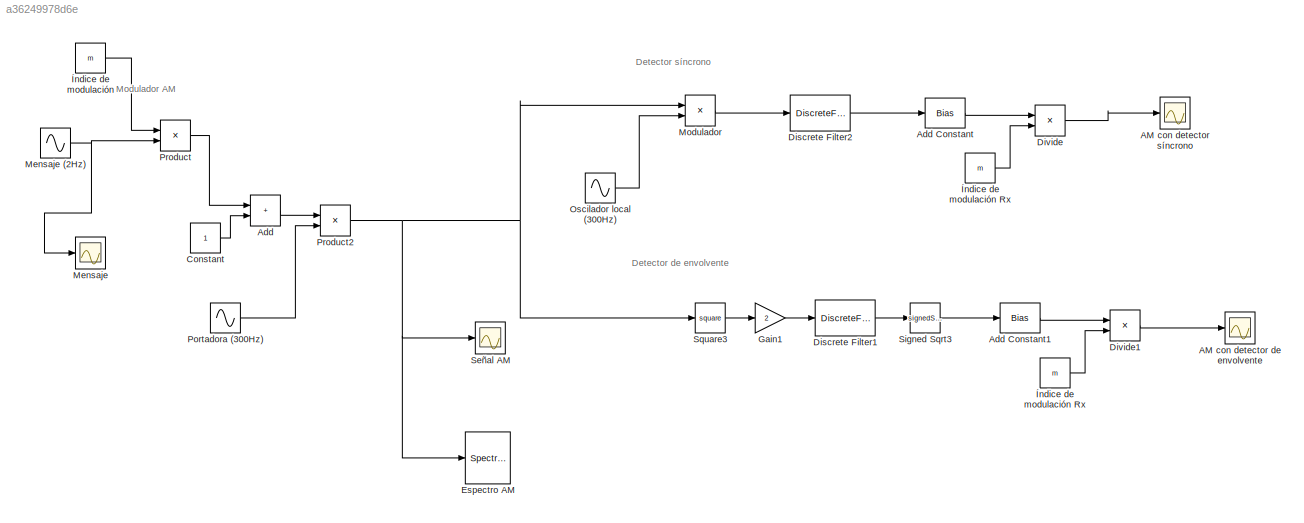
MODEL slx_a36249978d6e
KIND model
CONFIG AbsTol = auto
CONFIG EnableMultiTasking = off
CONFIG FixedStep = auto
CONFIG MaxStep = auto
CONFIG MinStep = auto
CONFIG RelTol = 1e-3
CONFIG SampleTimeConstraint = Unconstrained
CONFIG SolverName = VariableStepAuto
CONFIG StartTime = 0.0
CONFIG StopTime = 10.0
WORKSPACE source: mxarray member
WORKSPACE fm = 2
WORKSPACE fp = 300
WORKSPACE fs = 5000
WORKSPACE m = 0.8
BLOCK [Scope] AM con detector de envolvente
  Floating = off
  NumInputPorts = 1
  Ports = [1]
  ScopeSpecificationString = Simulink.scopes.TimeScopeBlockCfg('CurrentConfiguration', extmgr.ConfigurationSet(extmgr.Configuration('Core','General UI',true),extmgr.Configuration('Core','Source UI',true),extmgr.Configuration('Sources','WiredSimulink',true,'DataLoggingVariableName','ScopeData4'),extmgr.Configuration('Visuals','Time Domain',true,'SerializedDisplays',{struct('MinYLimReal','-2.71601','MaxYLimReal','2.41345','YLab...<+1413ch>
BLOCK [Scope] AM con detector síncrono
  Floating = off
  NumInputPorts = 1
  Ports = [1]
  ScopeSpecificationString = Simulink.scopes.TimeScopeBlockCfg('CurrentConfiguration', extmgr.ConfigurationSet(extmgr.Configuration('Core','General UI',true),extmgr.Configuration('Core','Source UI',true),extmgr.Configuration('Sources','WiredSimulink',true,'DataLoggingVariableName','ScopeData3'),extmgr.Configuration('Visuals','Time Domain',true,'SerializedDisplays',{struct('MinYLimReal','-1.53126','MaxYLimReal','1.2813','YLabe...<+1391ch>
BLOCK [Sum] Add
  IconShape = rectangular
  Ports = [2, 1]
BLOCK [Bias] Add Constant
  Bias = -1
  SaturateOnIntegerOverflow = off
BLOCK [Bias] Add Constant1
  Bias = -1
  SaturateOnIntegerOverflow = off
BLOCK [Constant] Constant
BLOCK [DiscreteFilter] Discrete Filter1
  Denominator = [1	-3.83582554064735	5.52081913662223	-3.53353521946302	0.848555999266477]
  InputPortMap = u0
  InputProcessing = Columns as channels (frame based)
  Numerator = [8.98486146397045e-07	3.59394458558818e-06	5.39091687838227e-06	3.59394458558818e-06	8.98486146397045e-07]
  Ports = [1, 1]
BLOCK [DiscreteFilter] Discrete Filter2
  Denominator = [1	-3.83582554064735	5.52081913662223	-3.53353521946302	0.848555999266477]
  InputPortMap = u0
  InputProcessing = Columns as channels (frame based)
  Numerator = [8.98486146397045e-07	3.59394458558818e-06	5.39091687838227e-06	3.59394458558818e-06	8.98486146397045e-07]
  Ports = [1, 1]
BLOCK [Product] Divide
  Inputs = */
  Ports = [2, 1]
BLOCK [Product] Divide1
  Inputs = */
  Ports = [2, 1]
BLOCK [SpectrumAnalyzer] Espectro AM
  Ports = [1]
  ScopeSpecificationString = spbscopes.SpectrumAnalyzerBlockCfg('CurrentConfiguration', extmgr.ConfigurationSet(extmgr.Configuration('Core','General UI',true),extmgr.Configuration('Core','Source UI',true),extmgr.Configuration('Sources','WiredSimulink',true),extmgr.Configuration('Sources','SPTool',false),extmgr.Configuration('Sources','File',false),extmgr.Configuration('Sources','Workspace',false),extmgr.Configuration('Sources...<+3607ch>
BLOCK [Gain] Gain1
  Gain = 2
BLOCK [Scope] Mensaje
  Floating = off
  NumInputPorts = 1
  Ports = [1]
  ScopeSpecificationString = Simulink.scopes.TimeScopeBlockCfg('CurrentConfiguration', extmgr.ConfigurationSet(extmgr.Configuration('Core','General UI',true),extmgr.Configuration('Core','Source UI',true),extmgr.Configuration('Sources','WiredSimulink',true,'DataLoggingVariableName','ScopeData4'),extmgr.Configuration('Visuals','Time Domain',true,'SerializedDisplays',{struct('MinYLimReal','-1.25','MaxYLimReal','1.25','YLabelReal...<+1385ch>
BLOCK [Sin] Mensaje (2Hz) 
  Frequency = 2*pi*fm
  Ports = [0, 1]
  SampleTime = 1/fs
BLOCK [Product] Modulador
  OutDataTypeStr = Inherit: Same as first input
  Ports = [2, 1]
BLOCK [Sin] Oscilador local (300Hz)
  Amplitude = 2
  Frequency = 2*pi*fp
  Ports = [0, 1]
  SampleTime = 1/fs
BLOCK [Sin] Portadora (300Hz) 
  Frequency = 2*pi*fp
  Ports = [0, 1]
  SampleTime = 1/fs
BLOCK [Product] Product
  Ports = [2, 1]
BLOCK [Product] Product2
  OutDataTypeStr = Inherit: Same as first input
  Ports = [2, 1]
BLOCK [Scope] Señal AM
  Floating = off
  NumInputPorts = 1
  Ports = [1]
  ScopeSpecificationString = Simulink.scopes.TimeScopeBlockCfg('CurrentConfiguration', extmgr.ConfigurationSet(extmgr.Configuration('Core','General UI',true),extmgr.Configuration('Core','Source UI',true),extmgr.Configuration('Sources','WiredSimulink',true,'DataLoggingVariableName','ScopeData3'),extmgr.Configuration('Visuals','Time Domain',true),extmgr.Configuration('Tools','Plot Navigation',true),extmgr.Configuration('Tools',...<+40ch>
BLOCK [Sqrt] Signed Sqrt3
  Operator = signedSqrt
BLOCK [Math] Square3
  Operator = square
  Ports = [1, 1]
BLOCK [Constant] Índice de modulación
  Value = m
BLOCK [Constant] Índice de modulación Rx
  Value = m
BLOCK [Constant] Índice de modulación Rx 
  Value = m
ANNOTATION (root): Detector de envolvente
ANNOTATION (root): Detector síncrono
ANNOTATION (root): Modulador AM
LINE Add Constant1:1 -> Divide1:1
LINE Add Constant:1 -> Divide:1
LINE Add:1 -> Product2:1
LINE Constant:1 -> Add:2
LINE Discrete Filter1:1 -> Signed Sqrt3:1
LINE Discrete Filter2:1 -> Add Constant:1
LINE Divide1:1 -> AM con detector de envolvente:1
LINE Divide:1 -> AM con detector síncrono:1
LINE Gain1:1 -> Discrete Filter1:1
NET Mensaje (2Hz) :1 -> Mensaje:1, Product:2
LINE Modulador:1 -> Discrete Filter2:1
LINE Oscilador local (300Hz):1 -> Modulador:2
LINE Portadora (300Hz) :1 -> Product2:2
NET Product2:1 -> Espectro AM:1, Modulador:1, Señal AM:1, Square3:1
LINE Product:1 -> Add:1
LINE Signed Sqrt3:1 -> Add Constant1:1
LINE Square3:1 -> Gain1:1
LINE Índice de modulación Rx :1 -> Divide1:2
LINE Índice de modulación Rx:1 -> Divide:2
LINE Índice de modulación:1 -> Product:1
note: NET lines group one-source signal fan-out (src -> all destinations, sorted); 1:1 wires keep LINE
